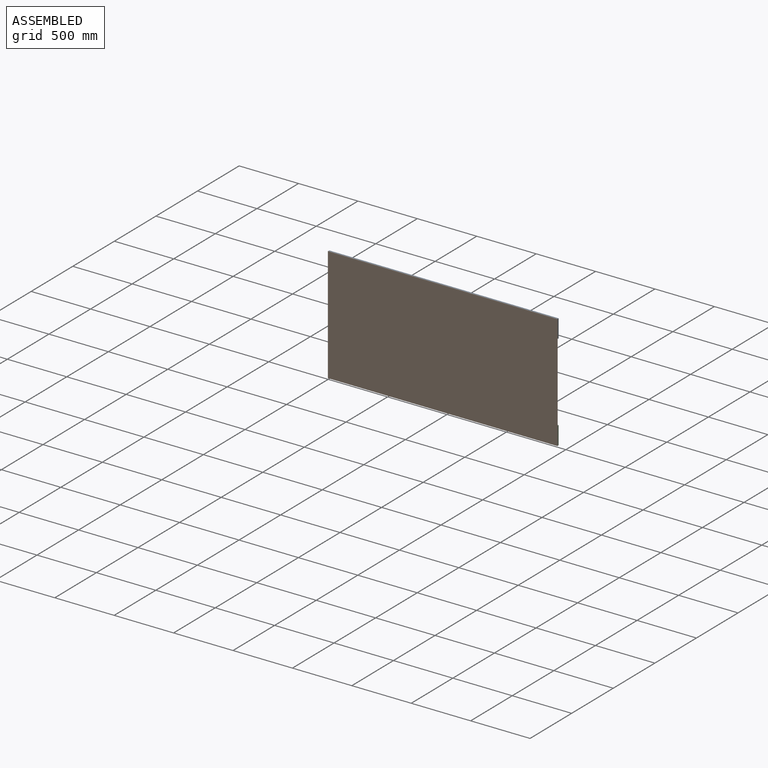
[diagram: assembled view]
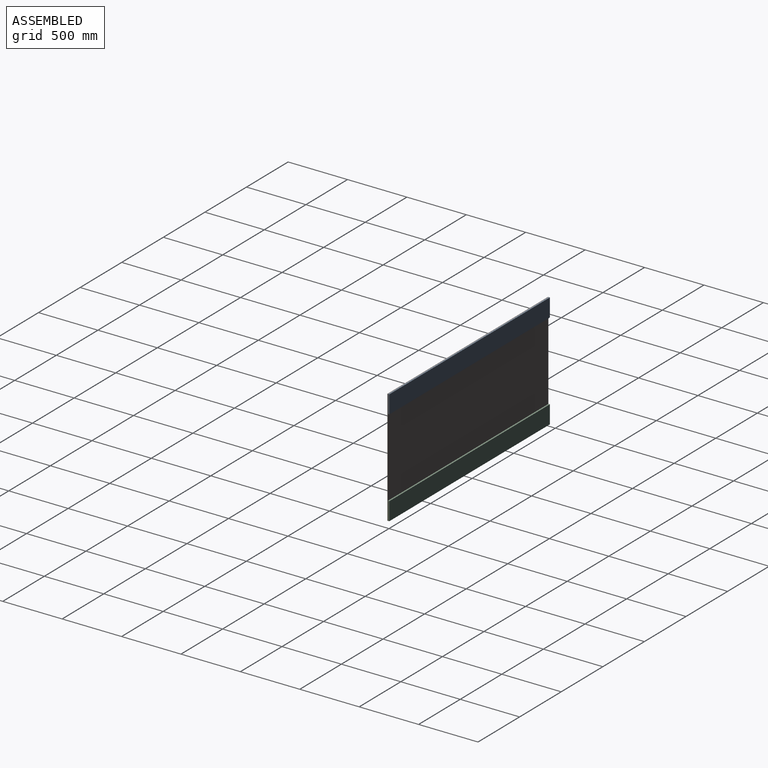
[diagram: assembled view, second angle]
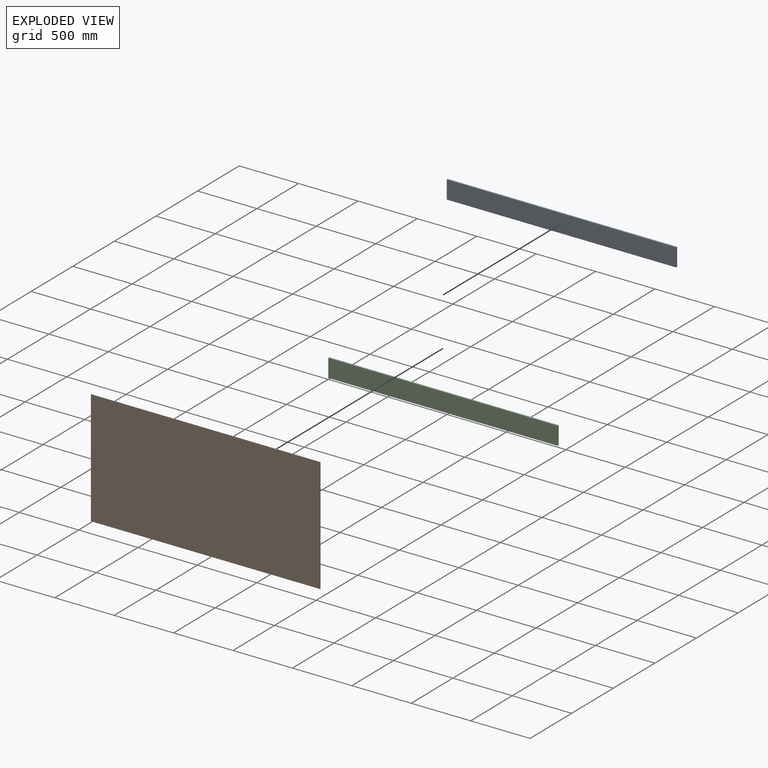
[diagram: exploded view]
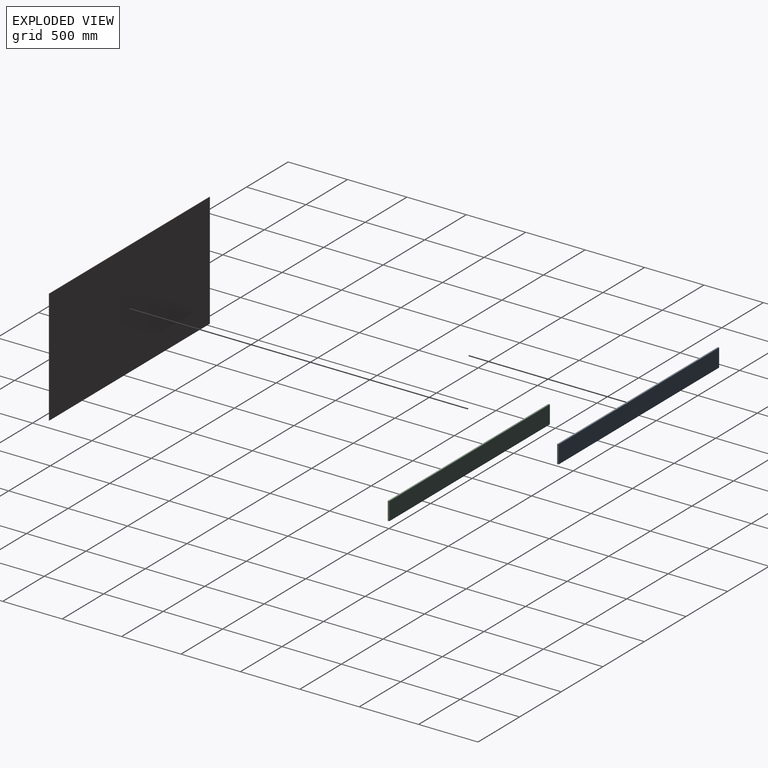
[diagram: exploded view, second angle]
ASSEMBLY  parts=3 mates=2
PART A: 6 faces, bbox 1930.4x12.7x152.4 mm
  f0: plane 152.4x12.7mm, normal (-1,0,0), area 1935.5mm2, adj f1,f3,f4,f5
  f1: plane 1930.4x12.7mm, normal (0,0,-1), area 24516.1mm2, adj f0,f2,f4,f5
  f2: plane 152.4x12.7mm, normal (1,0,0), area 1935.5mm2, adj f1,f3,f4,f5
  f3: plane 1930.4x12.7mm, normal (0,0,1), area 24516.1mm2, adj f0,f2,f4,f5
  f4: plane 1930.4x152.4mm, normal (0,-1,0), area 294193mm2, adj f0,f1,f2,f3
  f5: plane 1930.4x152.4mm, normal (0,1,0), area 294193mm2, adj f0,f1,f2,f3
PART B: 6 faces, bbox 1930.4x4.1x965.2 mm
  f0: plane 965.2x4.06mm, normal (-1,0,0), area 3922.6mm2, adj f1,f3,f4,f5
  f1: plane 1930.4x4.06mm, normal (0,0,-1), area 7845.1mm2, adj f0,f2,f4,f5
  f2: plane 965.2x4.06mm, normal (1,0,0), area 3922.6mm2, adj f1,f3,f4,f5
  f3: plane 1930.4x4.06mm, normal (0,0,1), area 7845.1mm2, adj f0,f2,f4,f5
  f4: plane 1930.4x965.2mm, normal (0,-1,0), area 1863222.1mm2, adj f0,f1,f2,f3
  f5: plane 1930.4x965.2mm, normal (0,1,0), area 1863222.1mm2, adj f0,f1,f2,f3
PART C: same geometry as A
PLACE A rot(axis=(-0.05,-0.99,0.15),0deg) t=(-107.79,473.96,404.2)mm
PLACE B rot(axis=(-0.05,-0.99,0.15),0deg) t=(-7.1,461.26,-14.07)mm
PLACE C rot(axis=(-0.05,-0.99,0.15),0deg) t=(-107.79,473.96,-408.6)mm
MATE fastened A.f4 <-> B.f5  axis (0,-1,0) through (-7.1,461.26,468.53)mm
MATE fastened B.f5 <-> C.f4  axis (0,1,0) through (-7.1,461.26,-496.67)mm
